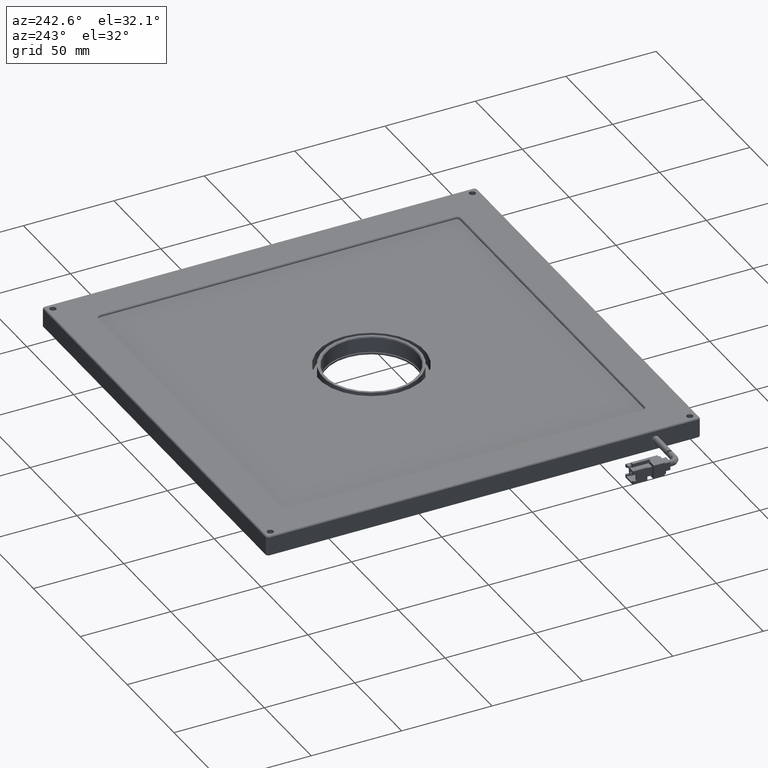
[diagram: clean part render]
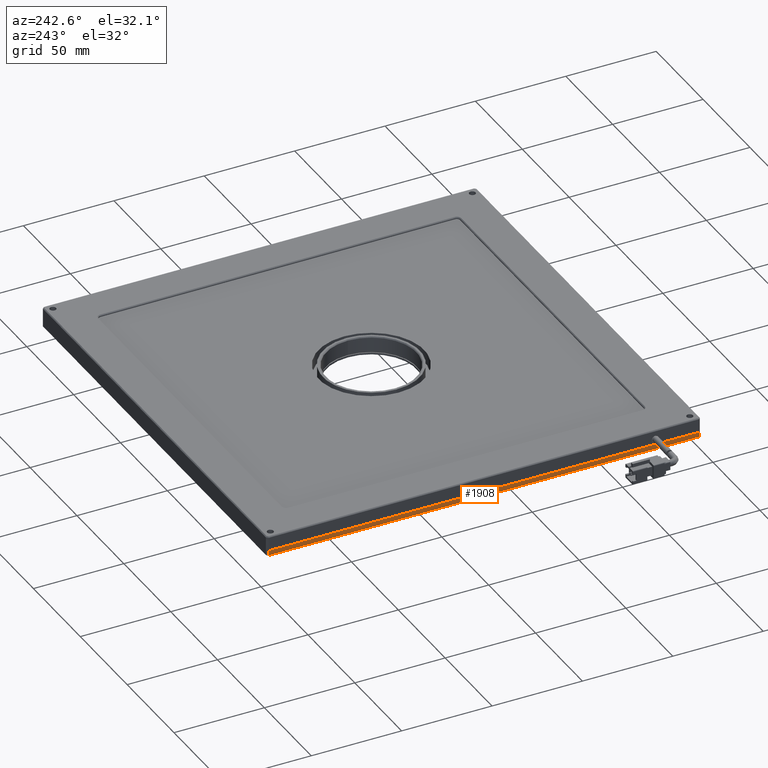
[diagram: same view with one face highlighted and labeled with its STEP entity id]
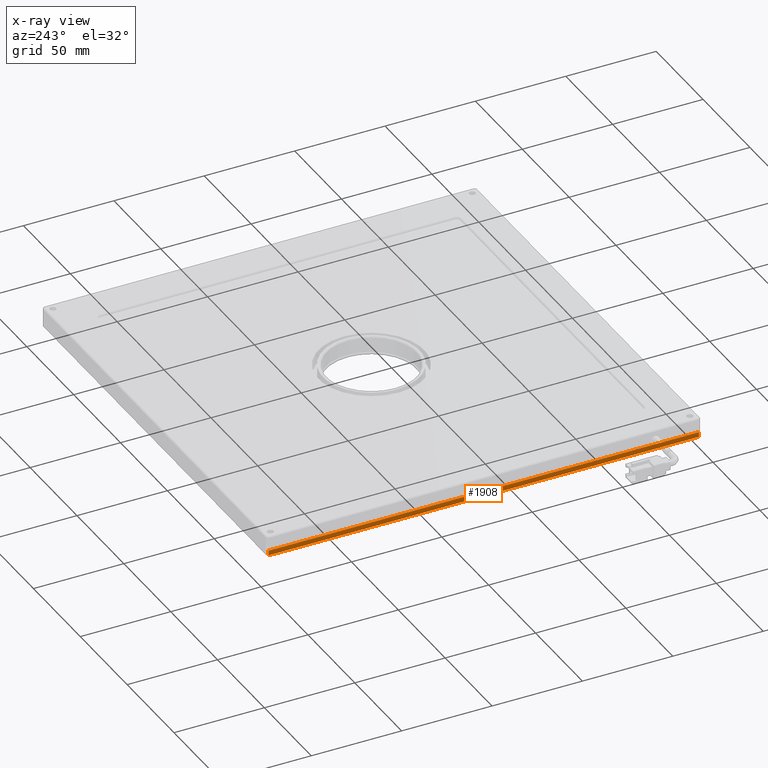
[diagram: x-ray of the same camera — body ghosted, the highlighted face saturated]
A machine part, auxiliary view. The second image highlights one B-rep face of the part: STEP entity #1908.
The next image is the same camera in x-ray: the body ghosted, the highlighted face saturated — about 0% of this face is hidden behind the body in this view.
In plain terms, the highlighted planar face has unit normal (1, -0, -0).
Its self-contained STEP definition (entity closure, byte-faithful):
#1415 = VECTOR ( 'NONE', #9223, 1000.000000000000000 ) ;
#1908 = ADVANCED_FACE ( 'NONE', ( #7655 ), #18029, .F. ) ;
#3727 = DIRECTION ( 'NONE',  ( -0.0000000000000000000, -1.000000000000000000, -0.0000000000000000000 ) ) ;
#4049 = CARTESIAN_POINT ( 'NONE',  ( -134.0546296296298600, 137.5420370370374300, -5.999999999999999100 ) ) ;
#4502 = EDGE_CURVE ( 'NONE', #11969, #21689, #8326, .T. ) ;
#4687 = EDGE_CURVE ( 'NONE', #21689, #9596, #19431, .T. ) ;
#4770 = EDGE_CURVE ( 'NONE', #21007, #11969, #5888, .T. ) ;
#4923 = CARTESIAN_POINT ( 'NONE',  ( -134.0546296296299400, -100.4579629629629400, -5.700000000000009900 ) ) ;
#5494 = AXIS2_PLACEMENT_3D ( 'NONE', #7833, #19675, #9531 ) ;
#5888 = LINE ( 'NONE', #4049, #1415 ) ;
#6586 = LINE ( 'NONE', #12041, #6868 ) ;
#6868 = VECTOR ( 'NONE', #18766, 1000.000000000000000 ) ;
#7655 = FACE_OUTER_BOUND ( 'NONE', #13565, .T. ) ;
#7833 = CARTESIAN_POINT ( 'NONE',  ( -134.0546296296299400, -101.4579629629629100, -5.999999999999999100 ) ) ;
#8326 = LINE ( 'NONE', #18755, #21586 ) ;
#8732 = CARTESIAN_POINT ( 'NONE',  ( -134.0546296296300000, 137.5420370370374300, -2.999999999999999100 ) ) ;
#9223 = DIRECTION ( 'NONE',  ( -0.0000000000000000000, -0.0000000000000000000, 1.000000000000000000 ) ) ;
#9531 = DIRECTION ( 'NONE',  ( -3.330669073875469100E-016, -1.000000000000000000, 0.0000000000000000000 ) ) ;
#9596 = VERTEX_POINT ( 'NONE', #4923 ) ;
#10424 = VECTOR ( 'NONE', #20457, 1000.000000000000000 ) ;
#10463 = ORIENTED_EDGE ( 'NONE', *, *, #4770, .F. ) ;
#11422 = ORIENTED_EDGE ( 'NONE', *, *, #19062, .T. ) ;
#11591 = ORIENTED_EDGE ( 'NONE', *, *, #4687, .F. ) ;
#11969 = VERTEX_POINT ( 'NONE', #8732 ) ;
#12041 = CARTESIAN_POINT ( 'NONE',  ( -134.0546296296300300, 138.5420370370374900, -5.700000000000005500 ) ) ;
#13565 = EDGE_LOOP ( 'NONE', ( #11422, #11591, #21324, #10463 ) ) ;
#13629 = CARTESIAN_POINT ( 'NONE',  ( -134.0546296296299400, -100.4579629629629700, -5.999999999999999100 ) ) ;
#15882 = CARTESIAN_POINT ( 'NONE',  ( -134.0546296296300000, 137.5420370370374300, -5.699999999999987700 ) ) ;
#18029 = PLANE ( 'NONE',  #5494 ) ;
#18755 = CARTESIAN_POINT ( 'NONE',  ( -134.0546296296300300, 138.5420370370373200, -2.999999999999999100 ) ) ;
#18766 = DIRECTION ( 'NONE',  ( -1.665334536937733300E-016, -1.000000000000000000, -1.665334536937734800E-016 ) ) ;
#19062 = EDGE_CURVE ( 'NONE', #21007, #9596, #6586, .T. ) ;
#19431 = LINE ( 'NONE', #13629, #10424 ) ;
#19476 = CARTESIAN_POINT ( 'NONE',  ( -134.0546296296299700, -100.4579629629629100, -2.999999999999997800 ) ) ;
#19675 = DIRECTION ( 'NONE',  ( 1.000000000000000000, -3.330669073875469100E-016, -0.0000000000000000000 ) ) ;
#20457 = DIRECTION ( 'NONE',  ( 0.0000000000000000000, 0.0000000000000000000, -1.000000000000000000 ) ) ;
#21007 = VERTEX_POINT ( 'NONE', #15882 ) ;
#21324 = ORIENTED_EDGE ( 'NONE', *, *, #4502, .F. ) ;
#21586 = VECTOR ( 'NONE', #3727, 1000.000000000000000 ) ;
#21689 = VERTEX_POINT ( 'NONE', #19476 ) ;